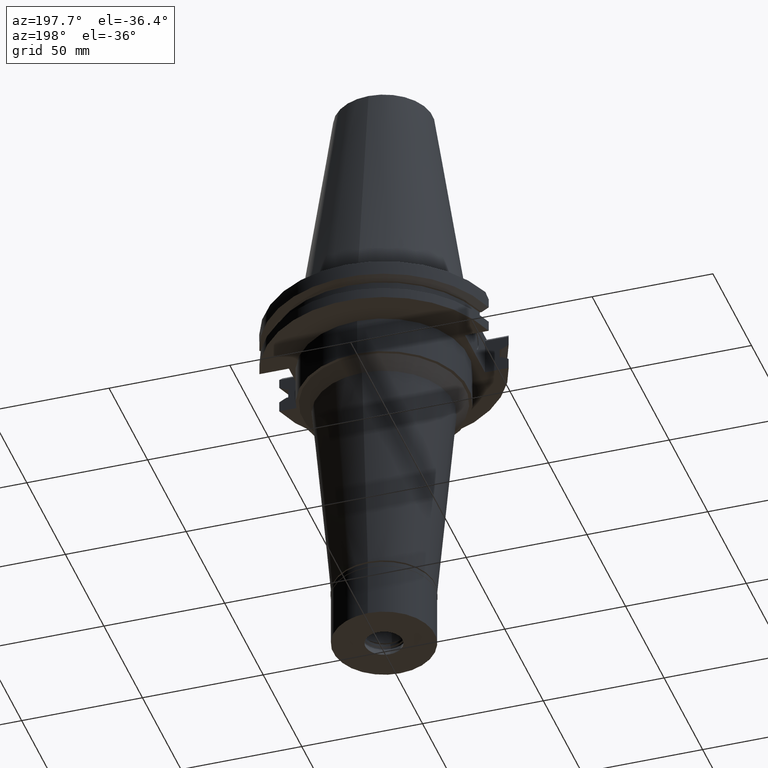
[diagram: clean part render]
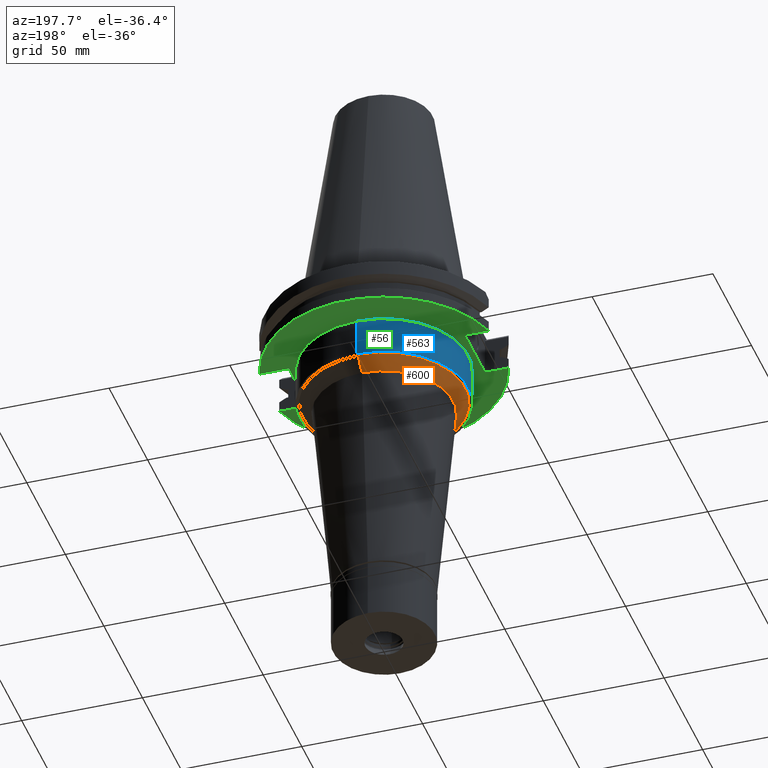
[diagram: same view with three faces highlighted in distinct colors, each labeled with its STEP entity id]
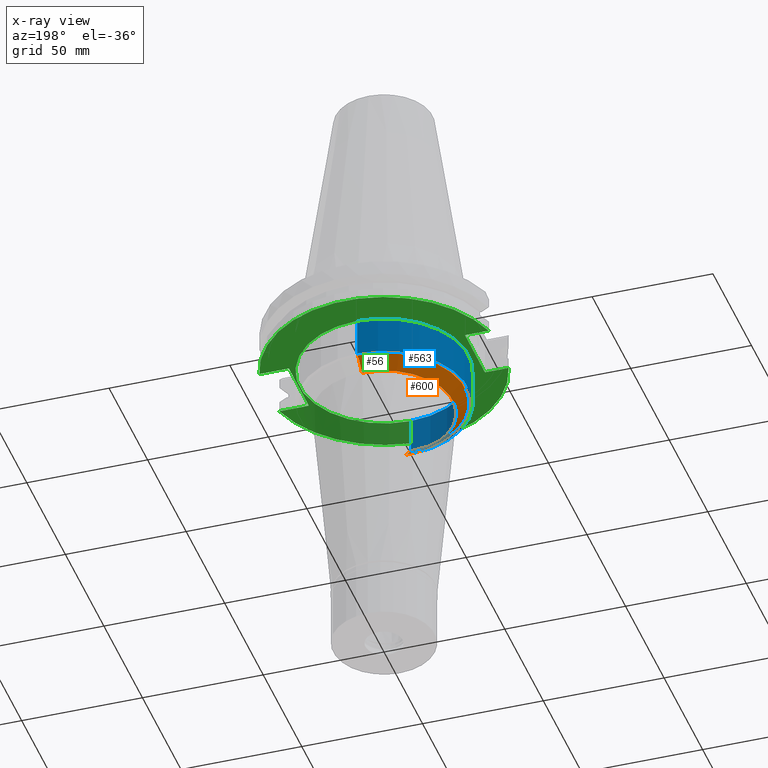
[diagram: x-ray of the same camera — body ghosted, the three highlighted faces saturated]
A machine part, auxiliary view with three faces highlighted in distinct colors.
The next image is the same camera in x-ray (body ghosted, the three faces saturated) — at least one of them is partly hidden behind the body in this view.
Their STEP definitions:

[orange] entity #600 — the highlighted conical surface has half-angle 45 deg.
#120 = ORIENTED_EDGE ( 'NONE', *, *, #2054, .T. ) ;
#129 = DIRECTION ( 'NONE',  ( 0.0000000000000000000, -0.7071067811862969954, -0.7071067811867980391 ) ) ;
#141 = CARTESIAN_POINT ( 'NONE',  ( 0.0000000000000000000, 0.0000000000000000000, -37.50000000000000000 ) ) ;
#219 = CARTESIAN_POINT ( 'NONE',  ( 0.0000000000000000000, -33.63776032580999953, -35.00000000000000000 ) ) ;
#252 = EDGE_CURVE ( 'NONE', #2519, #3210, #3155, .T. ) ;
#257 = AXIS2_PLACEMENT_3D ( 'NONE', #141, #2982, #1665 ) ;
#350 = VERTEX_POINT ( 'NONE', #2870 ) ;
#464 = DIRECTION ( 'NONE',  ( 0.0000000000000000000, -1.000000000000000000, 0.0000000000000000000 ) ) ;
#515 = AXIS2_PLACEMENT_3D ( 'NONE', #3304, #2333, #464 ) ;
#532 = CONICAL_SURFACE ( 'NONE', #257, 31.13776032580999953, 0.7853981633972997312 ) ;
#600 = ADVANCED_FACE ( 'NONE', ( #1126 ), #532, .T. ) ;
#669 = ORIENTED_EDGE ( 'NONE', *, *, #252, .T. ) ;
#799 = EDGE_CURVE ( 'NONE', #350, #1554, #1745, .T. ) ;
#951 = CARTESIAN_POINT ( 'NONE',  ( 0.0000000000000000000, 28.63776032580999953, -40.00000000000000000 ) ) ;
#967 = DIRECTION ( 'NONE',  ( 0.0000000000000000000, -1.000000000000000000, 0.0000000000000000000 ) ) ;
#1126 = FACE_OUTER_BOUND ( 'NONE', #2340, .T. ) ;
#1212 = CARTESIAN_POINT ( 'NONE',  ( 0.0000000000000000000, 33.63776032580999953, -35.00000000000000000 ) ) ;
#1281 = ORIENTED_EDGE ( 'NONE', *, *, #799, .F. ) ;
#1421 = CIRCLE ( 'NONE', #515, 33.63776032580999953 ) ;
#1442 = CIRCLE ( 'NONE', #2194, 28.63776032580999953 ) ;
#1454 = EDGE_CURVE ( 'NONE', #1554, #3210, #1442, .T. ) ;
#1505 = ORIENTED_EDGE ( 'NONE', *, *, #1454, .F. ) ;
#1554 = VERTEX_POINT ( 'NONE', #2512 ) ;
#1665 = DIRECTION ( 'NONE',  ( 0.0000000000000000000, 1.000000000000000000, 0.0000000000000000000 ) ) ;
#1745 = LINE ( 'NONE', #219, #1772 ) ;
#1772 = VECTOR ( 'NONE', #2251, 1000.000000000000000 ) ;
#1796 = CARTESIAN_POINT ( 'NONE',  ( 0.0000000000000000000, 33.63776032580999953, -35.00000000000000000 ) ) ;
#2054 = EDGE_CURVE ( 'NONE', #350, #2519, #1421, .T. ) ;
#2194 = AXIS2_PLACEMENT_3D ( 'NONE', #3004, #2237, #967 ) ;
#2209 = VECTOR ( 'NONE', #129, 1000.000000000000000 ) ;
#2237 = DIRECTION ( 'NONE',  ( 0.0000000000000000000, 0.0000000000000000000, -1.000000000000000000 ) ) ;
#2251 = DIRECTION ( 'NONE',  ( 0.0000000000000000000, 0.7071067811862969954, -0.7071067811867980391 ) ) ;
#2333 = DIRECTION ( 'NONE',  ( 0.0000000000000000000, 0.0000000000000000000, -1.000000000000000000 ) ) ;
#2340 = EDGE_LOOP ( 'NONE', ( #1505, #1281, #120, #669 ) ) ;
#2512 = CARTESIAN_POINT ( 'NONE',  ( 0.0000000000000000000, -28.63776032580999953, -40.00000000000000000 ) ) ;
#2519 = VERTEX_POINT ( 'NONE', #1796 ) ;
#2870 = CARTESIAN_POINT ( 'NONE',  ( 0.0000000000000000000, -33.63776032580999953, -35.00000000000000000 ) ) ;
#2982 = DIRECTION ( 'NONE',  ( 0.0000000000000000000, 0.0000000000000000000, 1.000000000000000000 ) ) ;
#3004 = CARTESIAN_POINT ( 'NONE',  ( 0.0000000000000000000, 0.0000000000000000000, -40.00000000000000000 ) ) ;
#3155 = LINE ( 'NONE', #1212, #2209 ) ;
#3210 = VERTEX_POINT ( 'NONE', #951 ) ;
#3304 = CARTESIAN_POINT ( 'NONE',  ( 0.0000000000000000000, 0.0000000000000000000, -35.00000000000000000 ) ) ;

[blue] entity #563 — the highlighted cylindrical surface (partial cylindrical patch) has radius 34.925 mm, axis along (0, 0, -1).
#40 = CARTESIAN_POINT ( 'NONE',  ( 0.0000000000000000000, 34.92499999999999716, -35.00000000000000000 ) ) ;
#136 = DIRECTION ( 'NONE',  ( 0.0000000000000000000, 0.0000000000000000000, -1.000000000000000000 ) ) ;
#329 = DIRECTION ( 'NONE',  ( 0.0000000000000000000, -1.000000000000000000, 0.0000000000000000000 ) ) ;
#354 = LINE ( 'NONE', #2978, #1326 ) ;
#416 = DIRECTION ( 'NONE',  ( 0.0000000000000000000, 0.0000000000000000000, -1.000000000000000000 ) ) ;
#481 = DIRECTION ( 'NONE',  ( 0.0000000000000000000, 1.000000000000000000, 0.0000000000000000000 ) ) ;
#563 = ADVANCED_FACE ( 'NONE', ( #1829 ), #1586, .T. ) ;
#577 = CARTESIAN_POINT ( 'NONE',  ( 0.0000000000000000000, 2.619825665075999614E-14, 113.9249999999999972 ) ) ;
#888 = EDGE_LOOP ( 'NONE', ( #1511, #2694, #1528, #1930 ) ) ;
#929 = VERTEX_POINT ( 'NONE', #40 ) ;
#1001 = DIRECTION ( 'NONE',  ( 0.0000000000000000000, 0.0000000000000000000, 1.000000000000000000 ) ) ;
#1039 = CARTESIAN_POINT ( 'NONE',  ( 0.0000000000000000000, -34.92499999999999716, -19.05000000000000071 ) ) ;
#1217 = VERTEX_POINT ( 'NONE', #2710 ) ;
#1297 = CARTESIAN_POINT ( 'NONE',  ( 0.0000000000000000000, 2.619825665075999614E-14, -35.00000000000000000 ) ) ;
#1326 = VECTOR ( 'NONE', #136, 1000.000000000000000 ) ;
#1364 = DIRECTION ( 'NONE',  ( 0.0000000000000000000, -1.000000000000000000, 0.0000000000000000000 ) ) ;
#1387 = CARTESIAN_POINT ( 'NONE',  ( 0.0000000000000000000, -34.92499999999999716, -19.05000000000000071 ) ) ;
#1417 = CIRCLE ( 'NONE', #2068, 34.92499999999999716 ) ;
#1511 = ORIENTED_EDGE ( 'NONE', *, *, #2026, .T. ) ;
#1528 = ORIENTED_EDGE ( 'NONE', *, *, #2811, .T. ) ;
#1586 = CYLINDRICAL_SURFACE ( 'NONE', #1606, 34.92499999999999716 ) ;
#1606 = AXIS2_PLACEMENT_3D ( 'NONE', #577, #2614, #1364 ) ;
#1728 = CARTESIAN_POINT ( 'NONE',  ( 0.0000000000000000000, 34.92499999999999716, -19.05000000000000071 ) ) ;
#1829 = FACE_OUTER_BOUND ( 'NONE', #888, .T. ) ;
#1930 = ORIENTED_EDGE ( 'NONE', *, *, #2393, .T. ) ;
#1983 = CIRCLE ( 'NONE', #2568, 34.92499999999999716 ) ;
#2003 = VERTEX_POINT ( 'NONE', #1728 ) ;
#2010 = VECTOR ( 'NONE', #416, 1000.000000000000000 ) ;
#2026 = EDGE_CURVE ( 'NONE', #929, #1217, #1983, .T. ) ;
#2068 = AXIS2_PLACEMENT_3D ( 'NONE', #2688, #2420, #329 ) ;
#2393 = EDGE_CURVE ( 'NONE', #2003, #929, #354, .T. ) ;
#2416 = EDGE_CURVE ( 'NONE', #3350, #1217, #2426, .T. ) ;
#2420 = DIRECTION ( 'NONE',  ( 0.0000000000000000000, 0.0000000000000000000, -1.000000000000000000 ) ) ;
#2426 = LINE ( 'NONE', #1387, #2010 ) ;
#2568 = AXIS2_PLACEMENT_3D ( 'NONE', #1297, #1001, #481 ) ;
#2614 = DIRECTION ( 'NONE',  ( 0.0000000000000000000, 0.0000000000000000000, -1.000000000000000000 ) ) ;
#2688 = CARTESIAN_POINT ( 'NONE',  ( 0.0000000000000000000, 2.619825665075999614E-14, -19.05000000000000071 ) ) ;
#2694 = ORIENTED_EDGE ( 'NONE', *, *, #2416, .F. ) ;
#2710 = CARTESIAN_POINT ( 'NONE',  ( 0.0000000000000000000, -34.92499999999999716, -35.00000000000000000 ) ) ;
#2811 = EDGE_CURVE ( 'NONE', #3350, #2003, #1417, .T. ) ;
#2978 = CARTESIAN_POINT ( 'NONE',  ( 0.0000000000000000000, 34.92499999999999716, -19.05000000000000071 ) ) ;
#3350 = VERTEX_POINT ( 'NONE', #1039 ) ;

[green] entity #56 — the highlighted planar face has unit normal (0, 0, -1).
#53 = PLANE ( 'NONE',  #1832 ) ;
#56 = ADVANCED_FACE ( 'NONE', ( #2666, #2409 ), #53, .T. ) ;
#176 = ORIENTED_EDGE ( 'NONE', *, *, #2811, .F. ) ;
#185 = CARTESIAN_POINT ( 'NONE',  ( 0.0000000000000000000, 2.619825665075999614E-14, -19.05000000000000071 ) ) ;
#293 = CARTESIAN_POINT ( 'NONE',  ( -37.67999999999999972, 12.95500000000000007, -19.05000000000000071 ) ) ;
#308 = VECTOR ( 'NONE', #1455, 1000.000000000000000 ) ;
#329 = DIRECTION ( 'NONE',  ( 0.0000000000000000000, -1.000000000000000000, 0.0000000000000000000 ) ) ;
#351 = CARTESIAN_POINT ( 'NONE',  ( 0.0000000000000000000, 0.0000000000000000000, -19.05000000000000071 ) ) ;
#352 = EDGE_CURVE ( 'NONE', #3174, #414, #1536, .T. ) ;
#392 = CIRCLE ( 'NONE', #1810, 34.92499999999999716 ) ;
#414 = VERTEX_POINT ( 'NONE', #293 ) ;
#441 = DIRECTION ( 'NONE',  ( 1.000000000000000000, 1.455229645530999953E-14, 0.0000000000000000000 ) ) ;
#487 = CARTESIAN_POINT ( 'NONE',  ( 35.27000000000000313, 12.95500000000000007, -19.05000000000000071 ) ) ;
#604 = VECTOR ( 'NONE', #848, 1000.000000000000000 ) ;
#679 = CIRCLE ( 'NONE', #897, 49.21249999999999858 ) ;
#709 = EDGE_CURVE ( 'NONE', #3294, #1253, #1439, .T. ) ;
#744 = DIRECTION ( 'NONE',  ( 0.0000000000000000000, -1.000000000000000000, 0.0000000000000000000 ) ) ;
#789 = ORIENTED_EDGE ( 'NONE', *, *, #3185, .F. ) ;
#835 = LINE ( 'NONE', #2134, #604 ) ;
#836 = VECTOR ( 'NONE', #441, 1000.000000000000000 ) ;
#848 = DIRECTION ( 'NONE',  ( 1.000000000000000000, -1.411572756165000194E-14, 0.0000000000000000000 ) ) ;
#849 = EDGE_CURVE ( 'NONE', #414, #2085, #2291, .T. ) ;
#897 = AXIS2_PLACEMENT_3D ( 'NONE', #185, #1558, #2551 ) ;
#986 = CARTESIAN_POINT ( 'NONE',  ( 0.0000000000000000000, 2.619825665075999614E-14, -19.05000000000000071 ) ) ;
#1007 = CARTESIAN_POINT ( 'NONE',  ( -37.67999999999999972, -12.95500000000000007, -19.05000000000000071 ) ) ;
#1021 = DIRECTION ( 'NONE',  ( 0.0000000000000000000, 1.000000000000000000, 0.0000000000000000000 ) ) ;
#1039 = CARTESIAN_POINT ( 'NONE',  ( 0.0000000000000000000, -34.92499999999999716, -19.05000000000000071 ) ) ;
#1087 = DIRECTION ( 'NONE',  ( 0.0000000000000000000, -1.000000000000000000, 0.0000000000000000000 ) ) ;
#1121 = DIRECTION ( 'NONE',  ( 0.0000000000000000000, 0.0000000000000000000, -1.000000000000000000 ) ) ;
#1173 = ORIENTED_EDGE ( 'NONE', *, *, #1525, .F. ) ;
#1203 = DIRECTION ( 'NONE',  ( 0.0000000000000000000, 0.0000000000000000000, 1.000000000000000000 ) ) ;
#1237 = CARTESIAN_POINT ( 'NONE',  ( -47.47671146204000081, 12.95500000000000007, -19.05000000000000071 ) ) ;
#1250 = EDGE_CURVE ( 'NONE', #3294, #2309, #3279, .T. ) ;
#1251 = CARTESIAN_POINT ( 'NONE',  ( 35.27000000000000313, 12.95500000000000007, -19.05000000000000071 ) ) ;
#1253 = VERTEX_POINT ( 'NONE', #1449 ) ;
#1291 = AXIS2_PLACEMENT_3D ( 'NONE', #986, #1203, #1021 ) ;
#1341 = DIRECTION ( 'NONE',  ( 0.0000000000000000000, 0.0000000000000000000, -1.000000000000000000 ) ) ;
#1416 = DIRECTION ( 'NONE',  ( 0.0000000000000000000, 1.000000000000000000, 0.0000000000000000000 ) ) ;
#1417 = CIRCLE ( 'NONE', #2068, 34.92499999999999716 ) ;
#1428 = CARTESIAN_POINT ( 'NONE',  ( -37.67999999999999972, -12.95500000000000007, -19.05000000000000071 ) ) ;
#1439 = LINE ( 'NONE', #1472, #836 ) ;
#1445 = EDGE_CURVE ( 'NONE', #1253, #2085, #2675, .T. ) ;
#1449 = CARTESIAN_POINT ( 'NONE',  ( 47.47671146204000081, 12.95500000000000007, -19.05000000000000071 ) ) ;
#1455 = DIRECTION ( 'NONE',  ( -1.000000000000000000, 1.813217472294999948E-14, 0.0000000000000000000 ) ) ;
#1472 = CARTESIAN_POINT ( 'NONE',  ( 35.27000000000000313, 12.95500000000000007, -19.05000000000000071 ) ) ;
#1525 = EDGE_CURVE ( 'NONE', #1928, #1595, #679, .T. ) ;
#1536 = LINE ( 'NONE', #2566, #1675 ) ;
#1558 = DIRECTION ( 'NONE',  ( 0.0000000000000000000, 0.0000000000000000000, 1.000000000000000000 ) ) ;
#1595 = VERTEX_POINT ( 'NONE', #3343 ) ;
#1664 = EDGE_LOOP ( 'NONE', ( #2704, #176 ) ) ;
#1675 = VECTOR ( 'NONE', #1838, 1000.000000000000000 ) ;
#1728 = CARTESIAN_POINT ( 'NONE',  ( 0.0000000000000000000, 34.92499999999999716, -19.05000000000000071 ) ) ;
#1795 = ORIENTED_EDGE ( 'NONE', *, *, #1445, .F. ) ;
#1810 = AXIS2_PLACEMENT_3D ( 'NONE', #2960, #1121, #1416 ) ;
#1832 = AXIS2_PLACEMENT_3D ( 'NONE', #351, #1341, #1087 ) ;
#1838 = DIRECTION ( 'NONE',  ( 0.0000000000000000000, 1.000000000000000000, 0.0000000000000000000 ) ) ;
#1881 = CARTESIAN_POINT ( 'NONE',  ( 35.27000000000000313, -12.95500000000000007, -19.05000000000000071 ) ) ;
#1923 = ORIENTED_EDGE ( 'NONE', *, *, #1250, .T. ) ;
#1928 = VERTEX_POINT ( 'NONE', #3231 ) ;
#2003 = VERTEX_POINT ( 'NONE', #1728 ) ;
#2031 = DIRECTION ( 'NONE',  ( -1.000000000000000000, -1.795085297572000011E-14, 0.0000000000000000000 ) ) ;
#2052 = LINE ( 'NONE', #1007, #2882 ) ;
#2068 = AXIS2_PLACEMENT_3D ( 'NONE', #2688, #2420, #329 ) ;
#2085 = VERTEX_POINT ( 'NONE', #1237 ) ;
#2134 = CARTESIAN_POINT ( 'NONE',  ( 35.27000000000000313, -12.95500000000000007, -19.05000000000000071 ) ) ;
#2250 = VECTOR ( 'NONE', #744, 1000.000000000000000 ) ;
#2291 = LINE ( 'NONE', #3001, #308 ) ;
#2309 = VERTEX_POINT ( 'NONE', #1881 ) ;
#2409 = FACE_BOUND ( 'NONE', #1664, .T. ) ;
#2410 = EDGE_CURVE ( 'NONE', #2003, #3350, #392, .T. ) ;
#2420 = DIRECTION ( 'NONE',  ( 0.0000000000000000000, 0.0000000000000000000, -1.000000000000000000 ) ) ;
#2467 = ORIENTED_EDGE ( 'NONE', *, *, #2918, .T. ) ;
#2551 = DIRECTION ( 'NONE',  ( 0.0000000000000000000, -1.000000000000000000, 0.0000000000000000000 ) ) ;
#2566 = CARTESIAN_POINT ( 'NONE',  ( -37.67999999999999972, -12.95500000000000007, -19.05000000000000071 ) ) ;
#2666 = FACE_OUTER_BOUND ( 'NONE', #2860, .T. ) ;
#2675 = CIRCLE ( 'NONE', #1291, 49.21249999999999858 ) ;
#2688 = CARTESIAN_POINT ( 'NONE',  ( 0.0000000000000000000, 2.619825665075999614E-14, -19.05000000000000071 ) ) ;
#2704 = ORIENTED_EDGE ( 'NONE', *, *, #2410, .F. ) ;
#2811 = EDGE_CURVE ( 'NONE', #3350, #2003, #1417, .T. ) ;
#2860 = EDGE_LOOP ( 'NONE', ( #2467, #1173, #789, #2990, #3275, #1795, #3077, #1923 ) ) ;
#2882 = VECTOR ( 'NONE', #2031, 1000.000000000000000 ) ;
#2918 = EDGE_CURVE ( 'NONE', #2309, #1595, #835, .T. ) ;
#2960 = CARTESIAN_POINT ( 'NONE',  ( 0.0000000000000000000, 2.619825665075999614E-14, -19.05000000000000071 ) ) ;
#2990 = ORIENTED_EDGE ( 'NONE', *, *, #352, .T. ) ;
#3001 = CARTESIAN_POINT ( 'NONE',  ( -37.67999999999999972, 12.95500000000000007, -19.05000000000000071 ) ) ;
#3077 = ORIENTED_EDGE ( 'NONE', *, *, #709, .F. ) ;
#3174 = VERTEX_POINT ( 'NONE', #1428 ) ;
#3185 = EDGE_CURVE ( 'NONE', #3174, #1928, #2052, .T. ) ;
#3231 = CARTESIAN_POINT ( 'NONE',  ( -47.47671146204000081, -12.95500000000000007, -19.05000000000000071 ) ) ;
#3275 = ORIENTED_EDGE ( 'NONE', *, *, #849, .T. ) ;
#3279 = LINE ( 'NONE', #1251, #2250 ) ;
#3294 = VERTEX_POINT ( 'NONE', #487 ) ;
#3343 = CARTESIAN_POINT ( 'NONE',  ( 47.47671146204000081, -12.95500000000000007, -19.05000000000000071 ) ) ;
#3350 = VERTEX_POINT ( 'NONE', #1039 ) ;